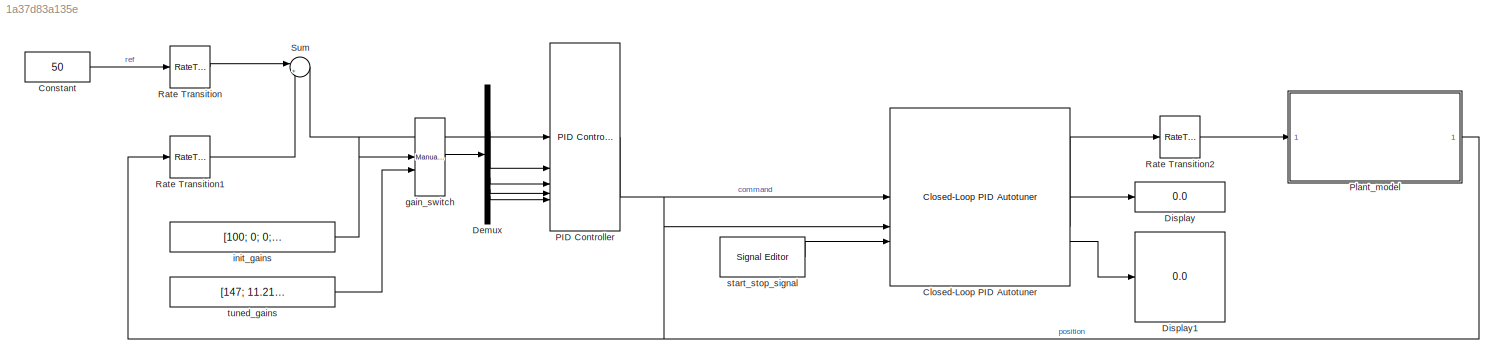
MODEL slx_1a37d83a135e
KIND model
CONFIG AbsTol = auto
CONFIG EnableMultiTasking = off
CONFIG FixedStep = auto
CONFIG MaxStep = auto
CONFIG MinStep = auto
CONFIG RelTol = 1e-3
CONFIG SampleTimeConstraint = Unconstrained
CONFIG SolverName = VariableStepAuto
CONFIG StartTime = 0.0
CONFIG StopTime = 150
WORKSPACE source: mxarray member
WORKSPACE TimeStep: Simulink.Parameter (value not decoded)
BLOCK [Reference] Closed-Loop PID Autotuner  REF=slctrlblks/Closed-Loop PID Autotuner
  SourceBlock = slctrlblks/Closed-Loop PID Autotuner
  SourceType = ClosedLoopOnlinePIDTuner
BLOCK [Constant] Constant
  Value = 50
BLOCK [Demux] Demux
BLOCK [Display] Display
  Decimation = 1
BLOCK [Display] Display1
  Decimation = 1
BLOCK [Reference] PID Controller  REF=slpidlib/PID Controller
  SourceBlock = slpidlib/PID Controller
  SourceType = PID 1dof
BLOCK [SubSystem] Plant_model
  ReferencedSubsystem = UHG_UAV_plant_model_noise
BLOCK [RateTransition] Rate Transition
  OutPortSampleTime = TimeStep
BLOCK [RateTransition] Rate Transition1
  OutPortSampleTime = TimeStep
BLOCK [RateTransition] Rate Transition2
BLOCK [Sum] Sum
  Inputs = |+-
BLOCK [Reference] gain_switch  REF=simulink/Signal
Routing/Manual
Variant Source
  SourceBlock = simulink/Signal\nRouting/Manual\nVariant Source
  SourceType = ManualVariantSource
BLOCK [Constant] init_gains
  Value = [100; 0; 0; 100]
BLOCK [Reference] start_stop_signal  REF=SignalEditorBlockLib/Signal Editor
  SourceBlock = SignalEditorBlockLib/Signal Editor
  SourceType = SignalEditor
  UserDataPersistent = on
BLOCK [Constant] tuned_gains
  Value = [147; 11.21; 183.3; 6]
LINE Closed-Loop PID Autotuner:1 -> Rate Transition2:1
LINE Closed-Loop PID Autotuner:2 -> Display:1
LINE Closed-Loop PID Autotuner:3 -> Display1:1
LINE Constant:1 -> Rate Transition:1
LINE Demux:1 -> PID Controller:2
LINE Demux:2 -> PID Controller:3
LINE Demux:3 -> PID Controller:4
LINE Demux:4 -> PID Controller:5
LINE PID Controller:1 -> Closed-Loop PID Autotuner:1
NET Plant_model:1 -> Closed-Loop PID Autotuner:2, Rate Transition1:1
LINE Rate Transition1:1 -> Sum:2
LINE Rate Transition2:1 -> Plant_model:1
LINE Rate Transition:1 -> Sum:1
LINE Sum:1 -> PID Controller:1
LINE gain_switch:1 -> Demux:1
LINE init_gains:1 -> gain_switch:1
LINE start_stop_signal:1 -> Closed-Loop PID Autotuner:3
LINE tuned_gains:1 -> gain_switch:2
note: NET lines group one-source signal fan-out (src -> all destinations, sorted); 1:1 wires keep LINE
